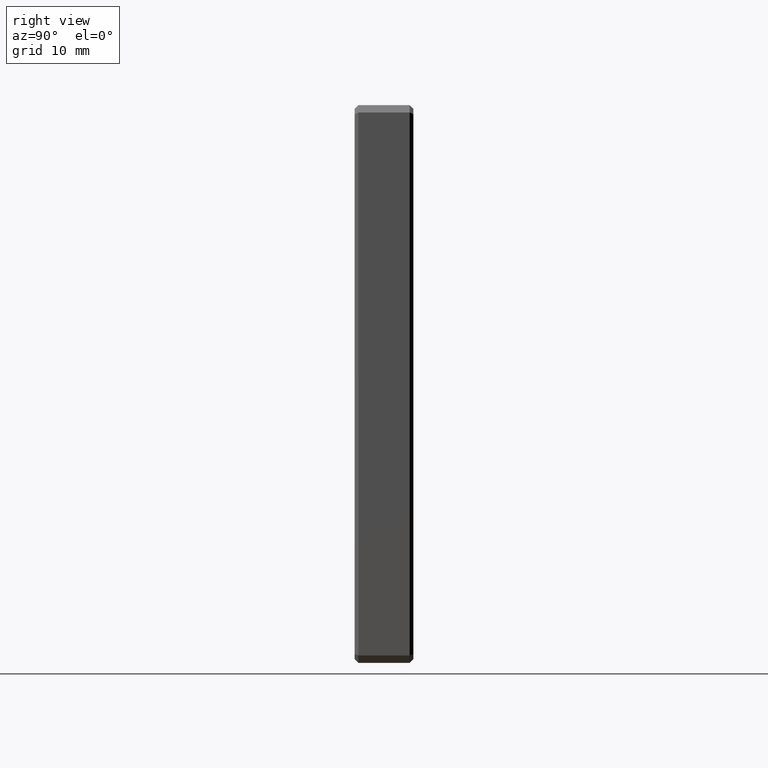
[diagram: clean part render]
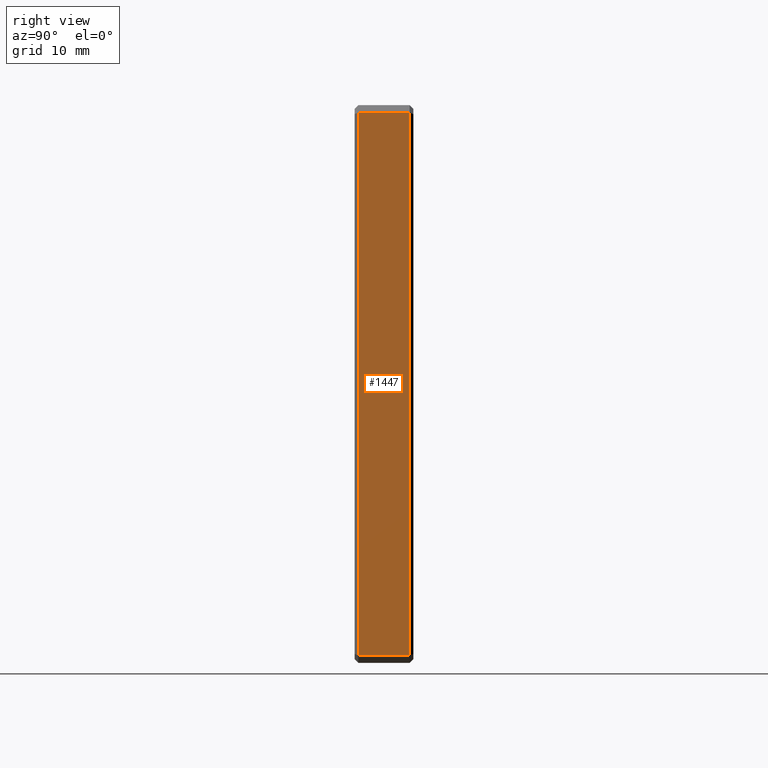
[diagram: same view with one face highlighted and labeled with its STEP entity id]
A machine part, right view. The second image highlights one B-rep face of the part: STEP entity #1447.
In plain terms, the highlighted planar face has unit normal (-1, 0, 0).
Its self-contained STEP definition (entity closure, byte-faithful):
#18 = DIRECTION ( 'NONE',  ( 0.000000000000000000, -1.000000000000000000, 0.000000000000000000 ) ) ;
#50 = CARTESIAN_POINT ( 'NONE',  ( 31.99999999999998579, 8.000000000000000000, -38.00000000000000711 ) ) ;
#54 = ORIENTED_EDGE ( 'NONE', *, *, #871, .T. ) ;
#113 = DIRECTION ( 'NONE',  ( 0.000000000000000000, 1.000000000000000000, 0.000000000000000000 ) ) ;
#114 = AXIS2_PLACEMENT_3D ( 'NONE', #50, #1602, #785 ) ;
#130 = CARTESIAN_POINT ( 'NONE',  ( 32.00000000000000711, 8.000000000000000000, 37.00000000000000711 ) ) ;
#179 = PLANE ( 'NONE',  #114 ) ;
#260 = VERTEX_POINT ( 'NONE', #1437 ) ;
#330 = CARTESIAN_POINT ( 'NONE',  ( 32.00000000000000711, 7.499999999999971578, 37.00000000000000711 ) ) ;
#361 = FACE_OUTER_BOUND ( 'NONE', #1419, .T. ) ;
#389 = VECTOR ( 'NONE', #846, 1000.000000000000000 ) ;
#404 = EDGE_CURVE ( 'NONE', #737, #1018, #810, .T. ) ;
#682 = ORIENTED_EDGE ( 'NONE', *, *, #404, .T. ) ;
#727 = VECTOR ( 'NONE', #113, 1000.000000000000000 ) ;
#732 = ORIENTED_EDGE ( 'NONE', *, *, #1231, .T. ) ;
#737 = VERTEX_POINT ( 'NONE', #1071 ) ;
#768 = VECTOR ( 'NONE', #946, 1000.000000000000000 ) ;
#785 = DIRECTION ( 'NONE',  ( 2.739037067331800623E-16, 0.000000000000000000, 1.000000000000000000 ) ) ;
#793 = ORIENTED_EDGE ( 'NONE', *, *, #1380, .T. ) ;
#805 = LINE ( 'NONE', #1578, #768 ) ;
#808 = CARTESIAN_POINT ( 'NONE',  ( 32.00000000000000711, 0.5000000000000004441, 37.00000000000000711 ) ) ;
#810 = LINE ( 'NONE', #130, #1661 ) ;
#846 = DIRECTION ( 'NONE',  ( 2.739037067331800623E-16, 0.000000000000000000, 1.000000000000000000 ) ) ;
#871 = EDGE_CURVE ( 'NONE', #1117, #260, #888, .T. ) ;
#888 = LINE ( 'NONE', #1277, #727 ) ;
#946 = DIRECTION ( 'NONE',  ( -2.739037067331800623E-16, 0.000000000000000000, -1.000000000000000000 ) ) ;
#1018 = VERTEX_POINT ( 'NONE', #808 ) ;
#1071 = CARTESIAN_POINT ( 'NONE',  ( 32.00000000000000711, 7.499999999999971578, 37.00000000000000711 ) ) ;
#1102 = CARTESIAN_POINT ( 'NONE',  ( 31.99999999999998579, 0.5000000000000004441, -37.00000000000000711 ) ) ;
#1117 = VERTEX_POINT ( 'NONE', #1102 ) ;
#1231 = EDGE_CURVE ( 'NONE', #1018, #1117, #805, .T. ) ;
#1277 = CARTESIAN_POINT ( 'NONE',  ( 31.99999999999998579, 8.000000000000000000, -37.00000000000000711 ) ) ;
#1380 = EDGE_CURVE ( 'NONE', #260, #737, #1636, .T. ) ;
#1419 = EDGE_LOOP ( 'NONE', ( #54, #793, #682, #732 ) ) ;
#1437 = CARTESIAN_POINT ( 'NONE',  ( 31.99999999999998579, 7.499999999999971578, -37.00000000000000711 ) ) ;
#1447 = ADVANCED_FACE ( 'NONE', ( #361 ), #179, .F. ) ;
#1578 = CARTESIAN_POINT ( 'NONE',  ( 31.99999999999998579, 0.5000000000000004441, -38.00000000000000711 ) ) ;
#1602 = DIRECTION ( 'NONE',  ( -1.000000000000000000, 0.000000000000000000, 2.739037067331800623E-16 ) ) ;
#1636 = LINE ( 'NONE', #330, #389 ) ;
#1661 = VECTOR ( 'NONE', #18, 1000.000000000000000 ) ;